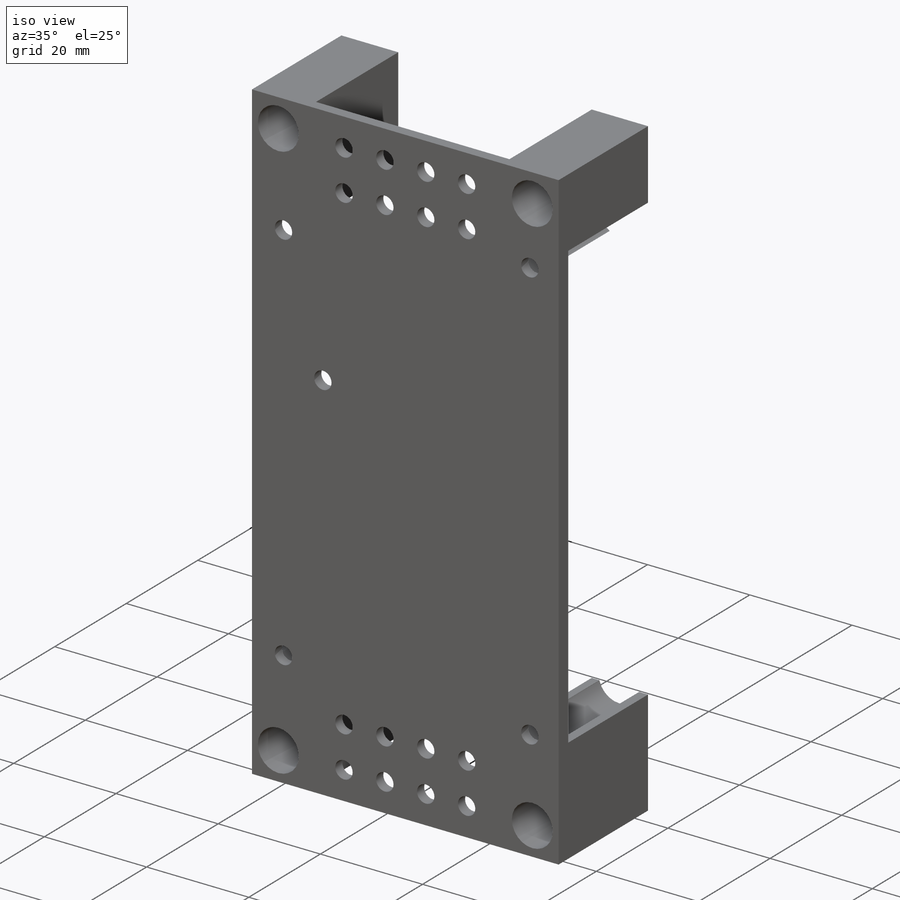
[diagram: iso view]
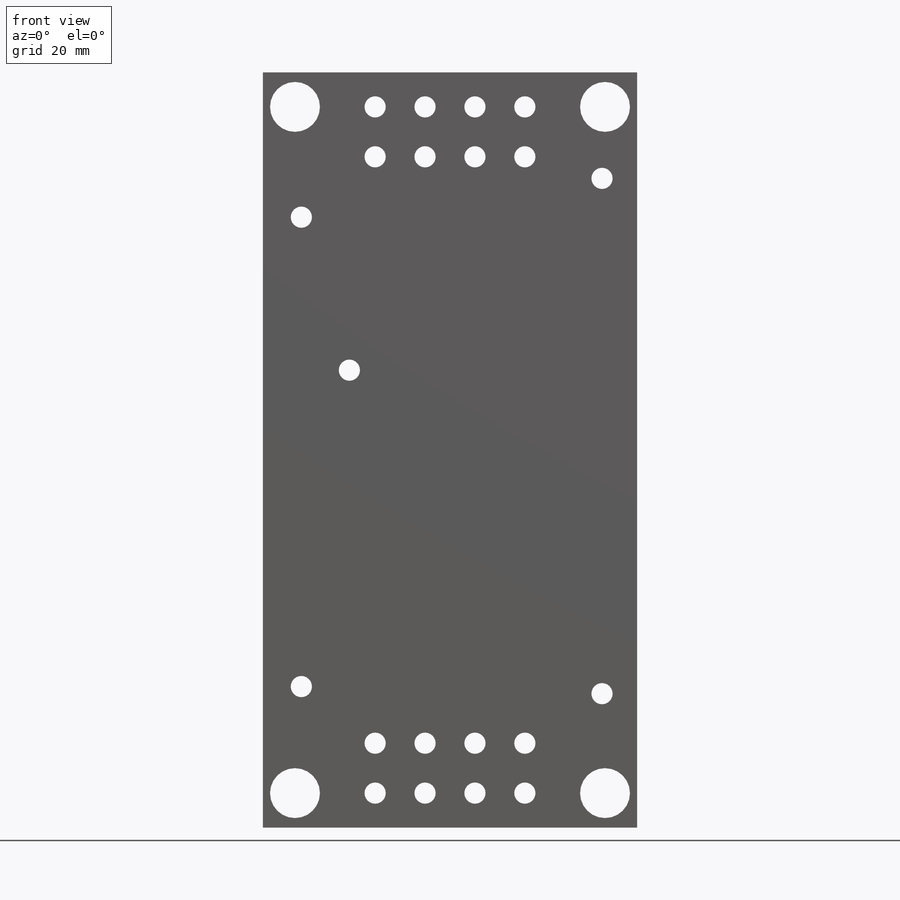
[diagram: front view]
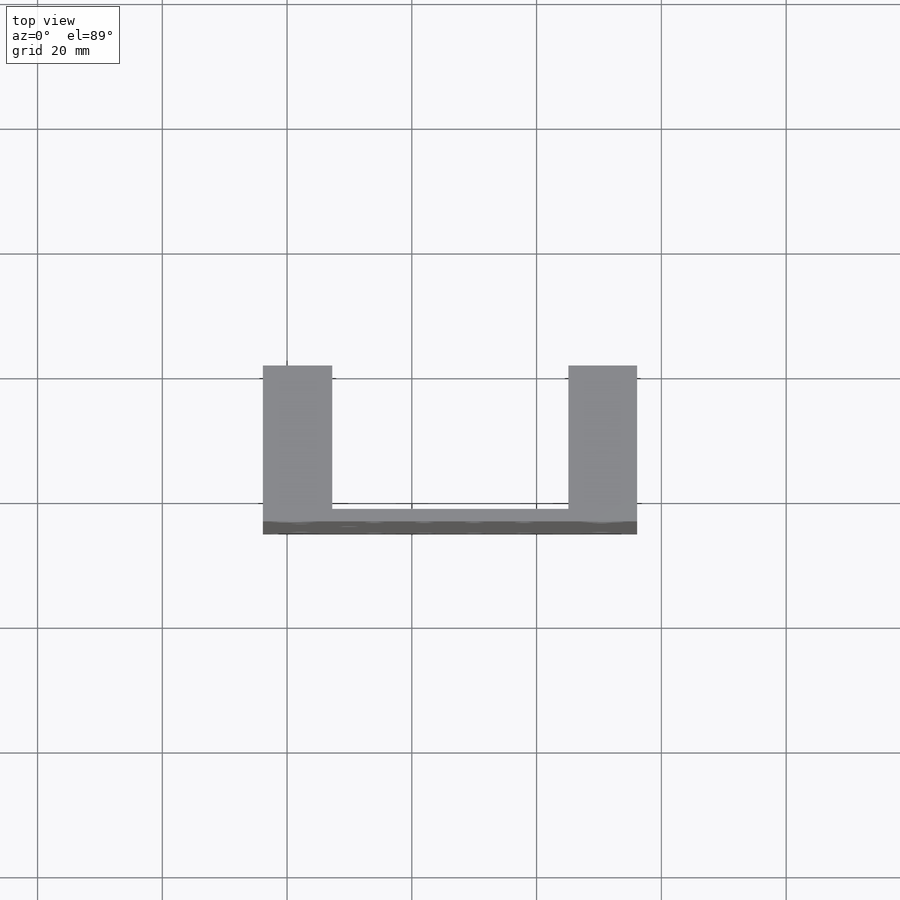
[diagram: top view]
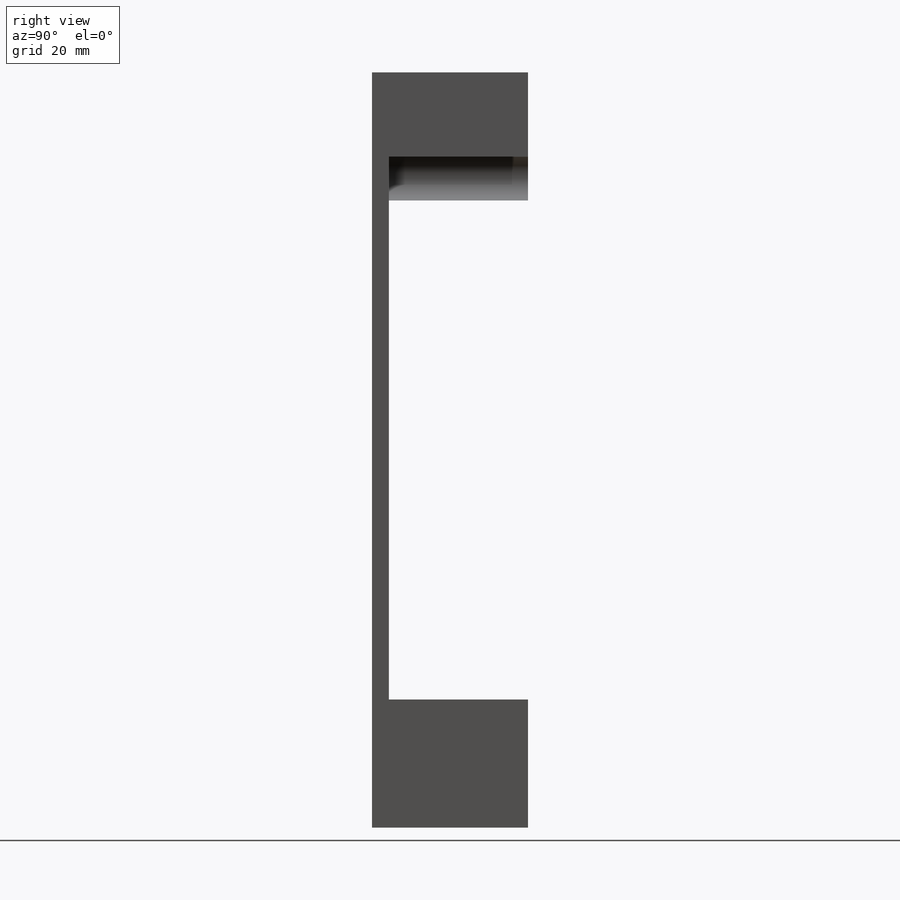
[diagram: right view]
SOLIDWORKS PART (.sldprt)
format: sldprt  version: not decoded by parser v0  size: 297,472 bytes
history: native  units: mm
features: sketch x6, cut_extrude x5, plane x3, material x1, extrude x1 (+10 scaffold rows collapsed)
feature tree (26):
  scaffold x10  (default folders/planes/origin — collapsed)
  material  "Matériau <non spécifié>"
  plane  "Plan de face"
  plane  "Plan de dessus"
  plane  "Plan de droite"
  sketch  "Esquisse1"  dims[c1.D5=4.0mm c1.D1=75.24mm c1.D2=48.2mm c1.D3=6.22mm c1.D4=1.14mm c2.D4=~1.676004mm c2.D5=1.7mm c2.D7=3.45mm c2.D1=55.0mm c2.D2=~121.051019mm c2.D3=25.0mm c3.D4=60.0mm c3.D5=75.24mm c3.D6=48.2mm c3.D7=6.22mm c3.D8=1.14mm c4.D5=17.08mm c4.D6=1.02mm c4.D7=~49.698827mm]
  extrude  "Boss.-Extru.1"  Depth=25mm
  sketch  "Esquisse2"  dims[D1=22.3mm D2=40.0mm]
  cut_extrude  "Enlèv. mat.-Extru.1"  [1 undecoded]
  sketch  "Esquisse3"  dims[D1=~5.119998mm]
  cut_extrude  "Enlèv. mat.-Extru.2"  Depth=23mm
  sketch  "Esquisse4"
  cut_extrude  "Enlèv. mat.-Extru.3"  Depth=142mm
  sketch  "Esquisse5"  dims[D1=4.0mm D2=2.0 D3=2.0]
  cut_extrude  "Enlèv. mat.-Extru.4"  Depth=5mm
  sketch  "Esquisse6"
  cut_extrude  "Enlèv. mat.-Extru.5"  Depth=7mm
decode coverage: 9 of 12 modeling features carry decoded parameters
note: ~ marks probable driven/reference dimensions
note: 1 parameter value undecoded
note: suppression state not decoded; provenance and decode notes live in map.json
